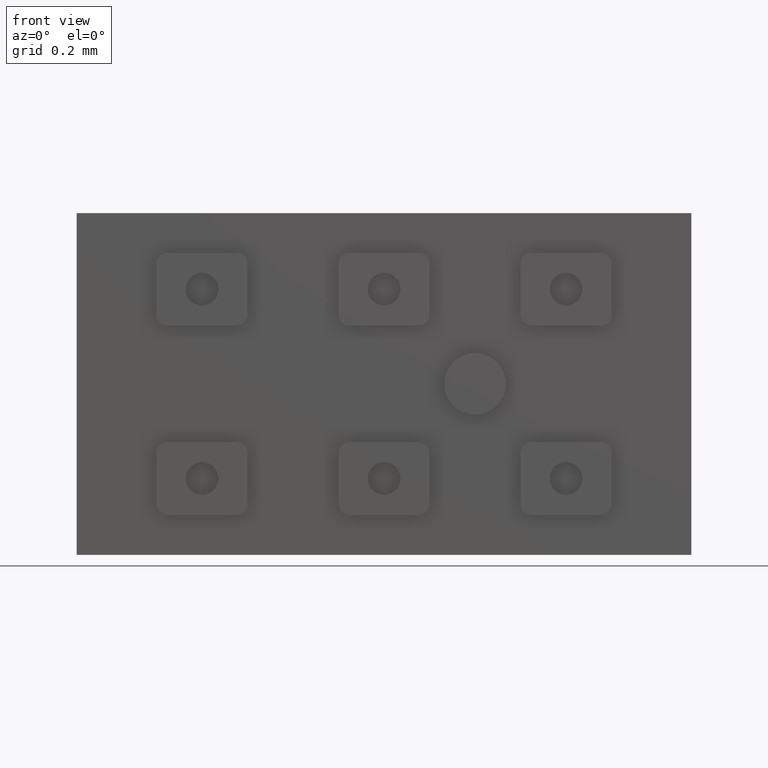
[diagram: clean part render]
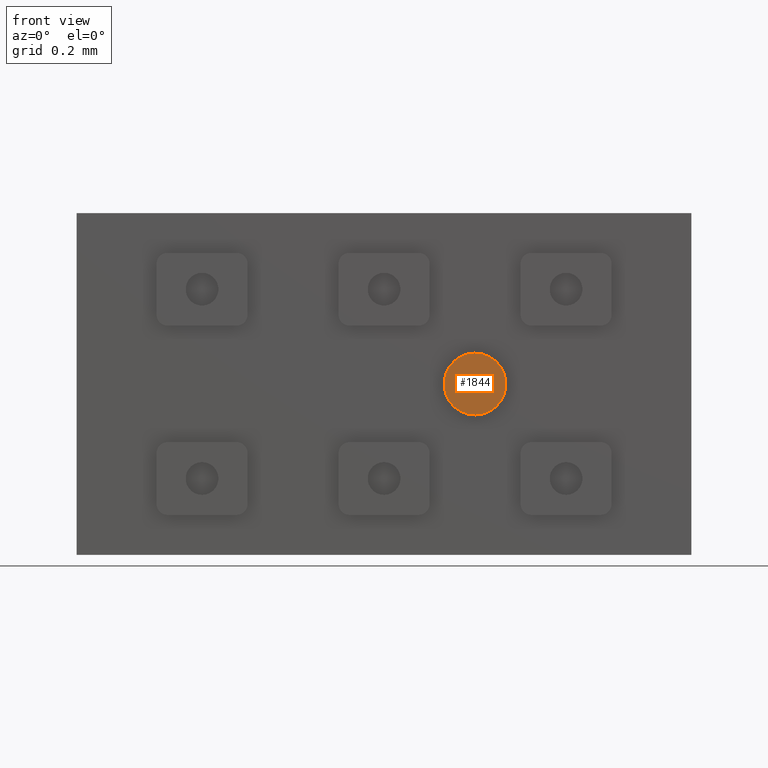
[diagram: same view with one face highlighted and labeled with its STEP entity id]
A machine part, front view. The second image highlights one B-rep face of the part: STEP entity #1844.
In plain terms, the highlighted planar face has unit normal (0, -1, 0).
Its self-contained STEP definition (entity closure, byte-faithful):
#33 = VERTEX_POINT ( 'NONE', #776 ) ;
#292 = FACE_OUTER_BOUND ( 'NONE', #2018, .T. ) ;
#360 = CARTESIAN_POINT ( 'NONE',  ( 0.2500000000000000000, -0.2750000000000000222, -0.08500000000000003386 ) ) ;
#399 = EDGE_CURVE ( 'NONE', #33, #1141, #2249, .T. ) ;
#776 = CARTESIAN_POINT ( 'NONE',  ( 0.2500000000000000000, -0.2750000000000000222, 0.08500000000000003386 ) ) ;
#876 = DIRECTION ( 'NONE',  ( 0.000000000000000000, -1.000000000000000000, 0.000000000000000000 ) ) ;
#1029 = ORIENTED_EDGE ( 'NONE', *, *, #2114, .T. ) ;
#1141 = VERTEX_POINT ( 'NONE', #360 ) ;
#1168 = CARTESIAN_POINT ( 'NONE',  ( 0.2500000000000000000, -0.2750000000000000222, 0.000000000000000000 ) ) ;
#1293 = DIRECTION ( 'NONE',  ( 0.000000000000000000, -0.000000000000000000, -1.000000000000000000 ) ) ;
#1607 = CARTESIAN_POINT ( 'NONE',  ( 0.2500000000000000000, -0.2750000000000000222, 0.000000000000000000 ) ) ;
#1668 = PLANE ( 'NONE',  #1900 ) ;
#1674 = AXIS2_PLACEMENT_3D ( 'NONE', #1168, #2375, #2542 ) ;
#1821 = DIRECTION ( 'NONE',  ( 0.000000000000000000, 0.000000000000000000, -1.000000000000000000 ) ) ;
#1844 = ADVANCED_FACE ( 'NONE', ( #292 ), #1668, .T. ) ;
#1900 = AXIS2_PLACEMENT_3D ( 'NONE', #2065, #876, #1293 ) ;
#2018 = EDGE_LOOP ( 'NONE', ( #2340, #1029 ) ) ;
#2036 = AXIS2_PLACEMENT_3D ( 'NONE', #1607, #2181, #1821 ) ;
#2065 = CARTESIAN_POINT ( 'NONE',  ( 0.2500000000000000000, -0.2750000000000000222, 0.000000000000000000 ) ) ;
#2114 = EDGE_CURVE ( 'NONE', #1141, #33, #2202, .T. ) ;
#2181 = DIRECTION ( 'NONE',  ( 0.000000000000000000, -1.000000000000000000, 0.000000000000000000 ) ) ;
#2202 = CIRCLE ( 'NONE', #2036, 0.08500000000000003386 ) ;
#2249 = CIRCLE ( 'NONE', #1674, 0.08500000000000003386 ) ;
#2340 = ORIENTED_EDGE ( 'NONE', *, *, #399, .T. ) ;
#2375 = DIRECTION ( 'NONE',  ( 0.000000000000000000, -1.000000000000000000, 0.000000000000000000 ) ) ;
#2542 = DIRECTION ( 'NONE',  ( 0.000000000000000000, 0.000000000000000000, -1.000000000000000000 ) ) ;